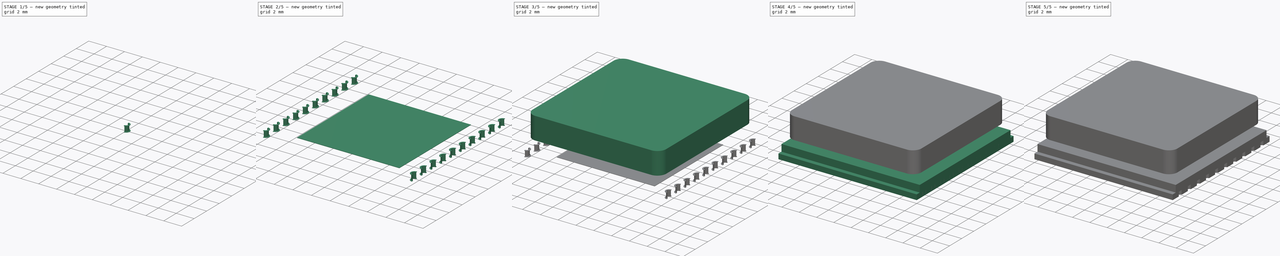
[diagram: build sequence overview — one tinted view per stage of 5, left to right]
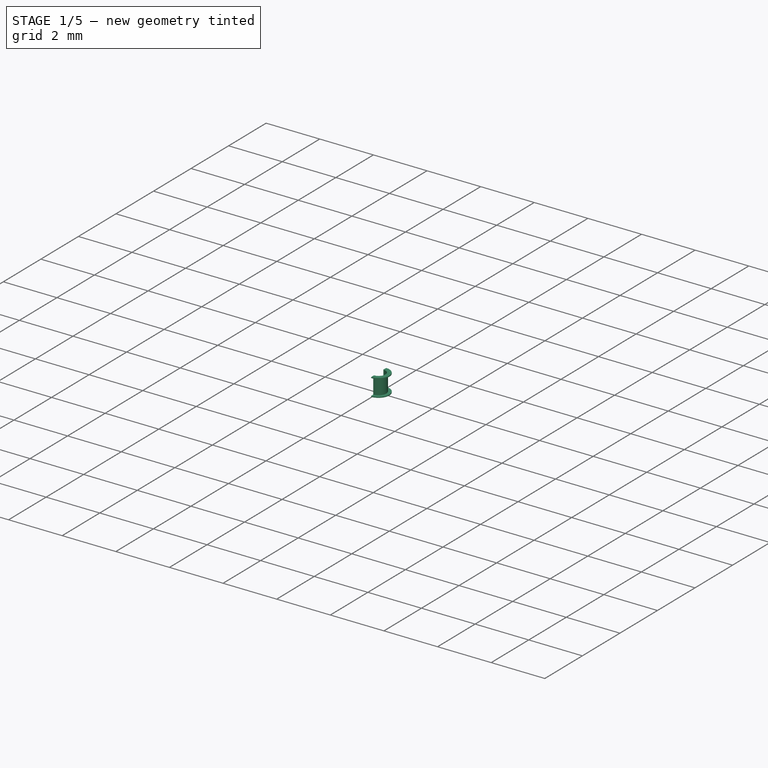
[diagram: stage 1 of 5 — iso view after this stage's code; geometry added in this stage tinted green]
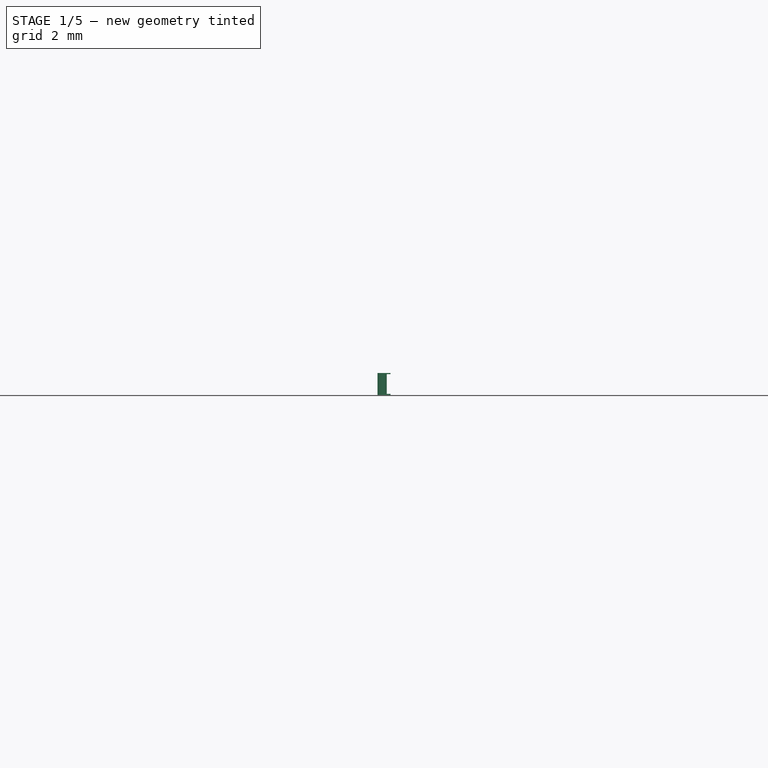
[diagram: stage 1 of 5 — front view after this stage's code; geometry added in this stage tinted green]
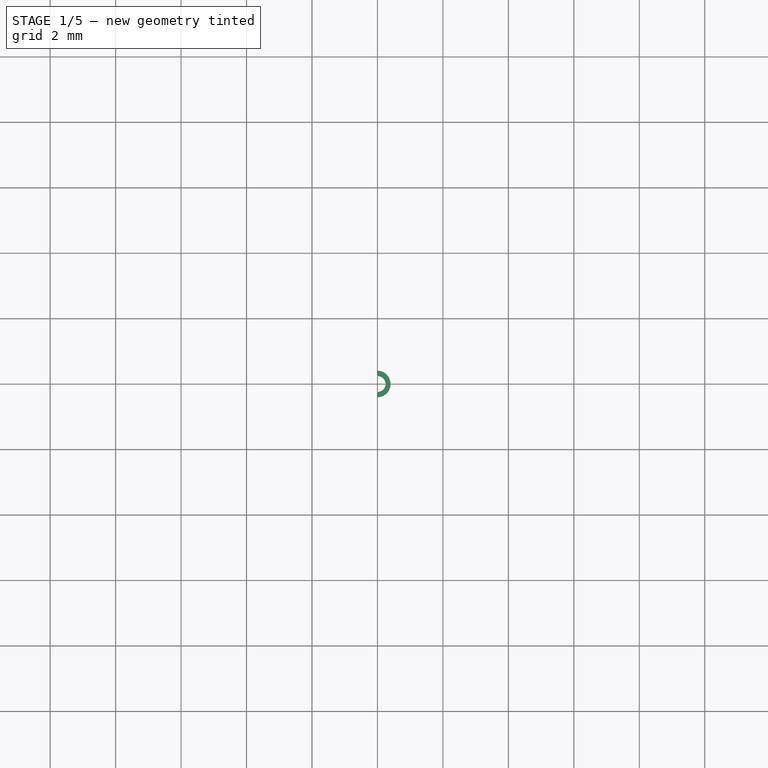
[diagram: stage 1 of 5 — top view after this stage's code; geometry added in this stage tinted green]
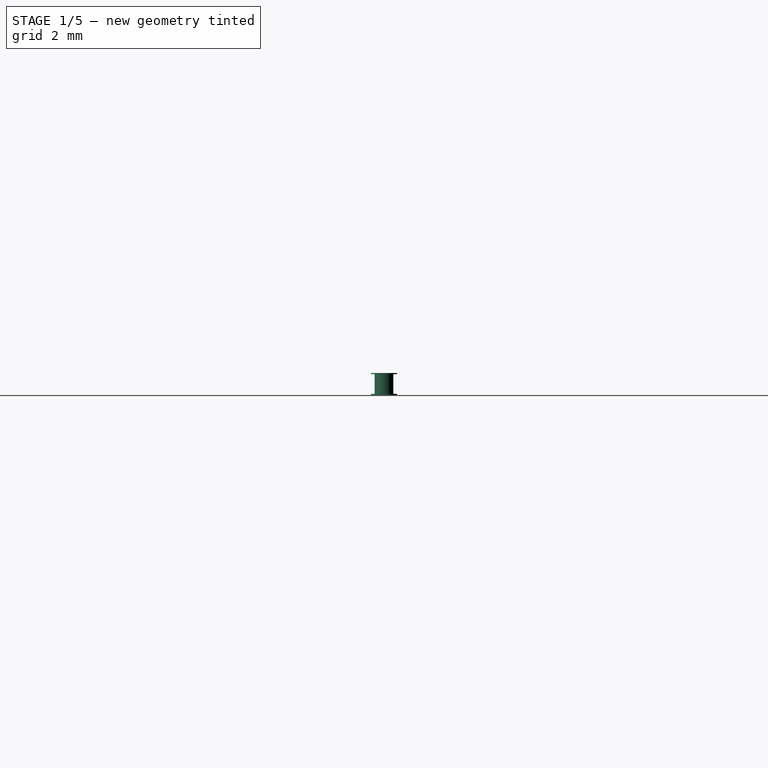
[diagram: stage 1 of 5 — right view after this stage's code; geometry added in this stage tinted green]
FCSTD DOCUMENT  (FreeCAD 1.0R38641 +468 (Git))
Label: fgpmmopa6h-1
License: All rights reserved
objects: Sketcher::SketchObject×11, PartDesign::Pad×8, PartDesign::Body×5, PartDesign::Pocket×3, Spreadsheet::Sheet×1, PartDesign::LinearPattern×1, PartDesign::Mirrored×1, PartDesign::MultiTransform×1, PartDesign::Thickness×1, PartDesign::Fillet×1, Part::FeaturePython×1, Part::Mirroring×1, Part::Compound×1
note: 75 computed .brp shape members not serialized (recipe doc carries the construction recipe); baked Part::Feature solids carry a one-line shape summary decoded from their .brp

FEATURE [PartDesign::Body] Body003  label="Patch"
  AllowCompound = false
  Group = -> [Sketch006,Pad003,Sketch007,Pad004,Fillet]
  Origin = -> Origin003
  Placement = pos=(0,0,4.7) rot=(0,0,1;0rad)
  Tip = -> Fillet
  expr: .Placement.Base.z = <<Master>>.height
FEATURE [Sketcher::SketchObject] Sketch008
  ArcFitTolerance = 1e-06
  AttachmentSupport = -> [XY_Plane004]
  FullyConstrained = true
  MakeInternals = false
  MapMode = 5
  expr: Constraints[10] = <<Master>>.pin_id
  sketch-geometry (4):
    g0: ArcOfCircle CenterX=0 CenterY=0 CenterZ=0 NormalX=0 NormalY=0 NormalZ=1 AngleXU=0 Radius=0.25 StartAngle=4.71239 EndAngle=7.85398
    g1: ArcOfCircle CenterX=0 CenterY=0 CenterZ=0 NormalX=0 NormalY=0 NormalZ=1 AngleXU=0 Radius=0.4 StartAngle=4.71239 EndAngle=7.85398
    g2: LineSegment StartX=1e-16 StartY=0.4 StartZ=0 EndX=1e-16 EndY=0.25 EndZ=0
    g3: LineSegment StartX=0 StartY=-0.25 StartZ=0 EndX=-1e-16 EndY=-0.4 EndZ=0
  constraints (12):
    c: Coincident(g0,g-1)
    c: PointOnObject(g0,g-2)
    c: PointOnObject(g0,g-2)
    c: Coincident(g1,g0)
    c: PointOnObject(g1,g-2)
    c: PointOnObject(g1,g-2)
    c: Coincident(g2,g1)
    c: Coincident(g2,g0)
    c: Coincident(g3,g0)
    c: Coincident(g3,g1)
    c: Diameter(g0) = 0.5
    c: Diameter(g1) = 0.8
FEATURE [PartDesign::Pad] Pad005
  Direction = (0,0,1)
  Length = 0.0348
  Length2 = 10
  Profile = -> Sketch008
  ReferenceAxis = -> Sketch008 [N_Axis]
  Suppressed = false
  Type = 0
  expr: Length = <<Master>>.trace_h
FEATURE [Sketcher::SketchObject] Sketch009
  ArcFitTolerance = 1e-06
  AttachmentSupport = -> [XY_Plane004]
  FullyConstrained = true
  MakeInternals = false
  MapMode = 5
  expr: Constraints[10] = <<Master>>.pin_id
  expr: Constraints[11] = <<Master>>.pin_od
  sketch-geometry (4):
    g0: ArcOfCircle CenterX=0 CenterY=0 CenterZ=0 NormalX=0 NormalY=0 NormalZ=1 AngleXU=0 Radius=0.25 StartAngle=4.71239 EndAngle=7.85398
    g1: ArcOfCircle CenterX=0 CenterY=0 CenterZ=0 NormalX=0 NormalY=0 NormalZ=1 AngleXU=0 Radius=0.2848 StartAngle=4.71239 EndAngle=7.85398
    g2: LineSegment StartX=1e-16 StartY=0.2848 StartZ=0 EndX=1e-16 EndY=0.25 EndZ=0
    g3: LineSegment StartX=0 StartY=-0.25 StartZ=0 EndX=-1e-16 EndY=-0.2848 EndZ=0
  constraints (12):
    c: Coincident(g0,g-1)
    c: PointOnObject(g0,g-2)
    c: PointOnObject(g0,g-2)
    c: Coincident(g1,g0)
    c: PointOnObject(g1,g-2)
    c: PointOnObject(g1,g-2)
    c: Coincident(g2,g1)
    c: Coincident(g2,g0)
    c: Coincident(g3,g0)
    c: Coincident(g3,g1)
    c: Diameter(g0) = 0.5
    c: Diameter(g1) = 0.5696
FEATURE [PartDesign::Pad] Pad006
  BaseFeature = -> Pad005
  Direction = (0,0,1)
  Length = 0.6348
  Length2 = 10
  Profile = -> Sketch009
  ReferenceAxis = -> Sketch009 [N_Axis]
  Suppressed = false
  Type = 0
  expr: Length = <<Master>>.pcb_top
FEATURE [Sketcher::SketchObject] Sketch010
  ArcFitTolerance = 1e-06
  AttachmentOffset = pos=(0,0,0.6348) rot=(0,0,1;0rad)
  AttachmentSupport = -> [XY_Plane004]
  FullyConstrained = true
  MakeInternals = false
  MapMode = 5
  Placement = pos=(0,0,0.6348) rot=(0,0,1;0rad)
  expr: .AttachmentOffset.Base.z = <<Master>>.pcb_top
  expr: Constraints[10] = <<Master>>.pin_id
  sketch-geometry (4):
    g0: ArcOfCircle CenterX=0 CenterY=0 CenterZ=0 NormalX=0 NormalY=0 NormalZ=1 AngleXU=0 Radius=0.25 StartAngle=4.71239 EndAngle=7.85398
    g1: ArcOfCircle CenterX=0 CenterY=0 CenterZ=0 NormalX=0 NormalY=0 NormalZ=1 AngleXU=0 Radius=0.4 StartAngle=4.71239 EndAngle=7.85398
    g2: LineSegment StartX=1e-16 StartY=0.4 StartZ=0 EndX=1e-16 EndY=0.25 EndZ=0
    g3: LineSegment StartX=0 StartY=-0.25 StartZ=0 EndX=-1e-16 EndY=-0.4 EndZ=0
  constraints (12):
    c: Coincident(g0,g-1)
    c: PointOnObject(g0,g-2)
    c: PointOnObject(g0,g-2)
    c: Coincident(g1,g0)
    c: PointOnObject(g1,g-2)
    c: PointOnObject(g1,g-2)
    c: Coincident(g2,g1)
    c: Coincident(g2,g0)
    c: Coincident(g3,g0)
    c: Coincident(g3,g1)
    c: Diameter(g0) = 0.5
    c: Diameter(g1) = 0.8
FEATURE [PartDesign::Pad] Pad007
  BaseFeature = -> Pad006
  Direction = (0,0,1)
  Length = 0.0348
  Length2 = 10
  Profile = -> Sketch010
  ReferenceAxis = -> Sketch010 [N_Axis]
  Refine = true
  Suppressed = false
  Type = 0
  expr: Length = <<Master>>.trace_h
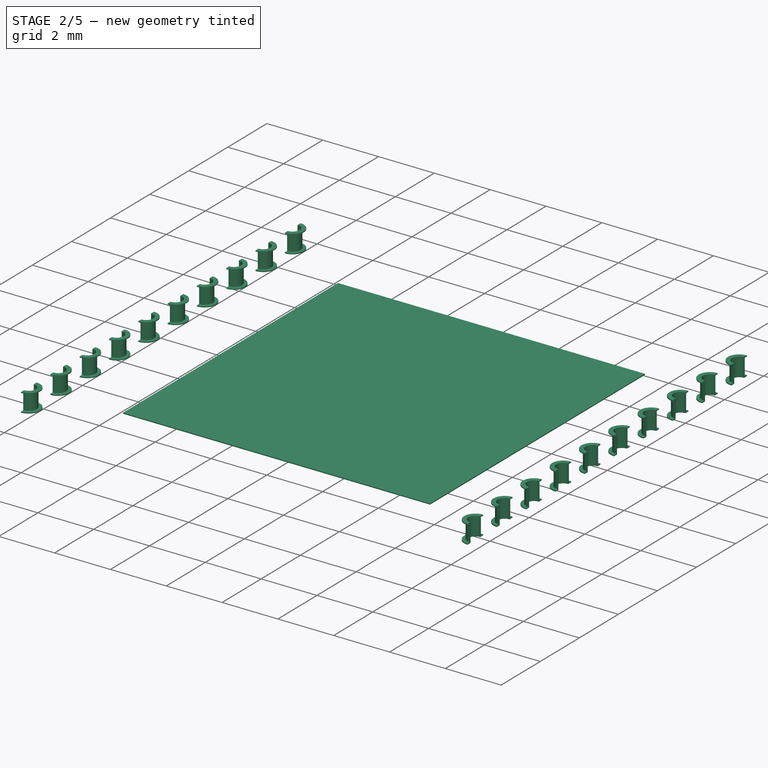
[diagram: stage 2 of 5 — iso view after this stage's code; geometry added in this stage tinted green]
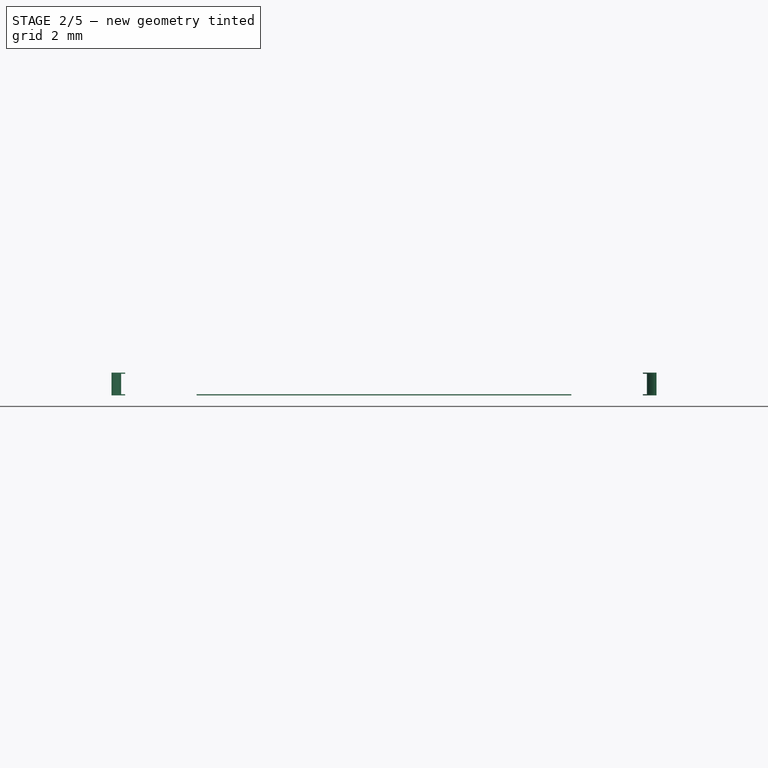
[diagram: stage 2 of 5 — front view after this stage's code; geometry added in this stage tinted green]
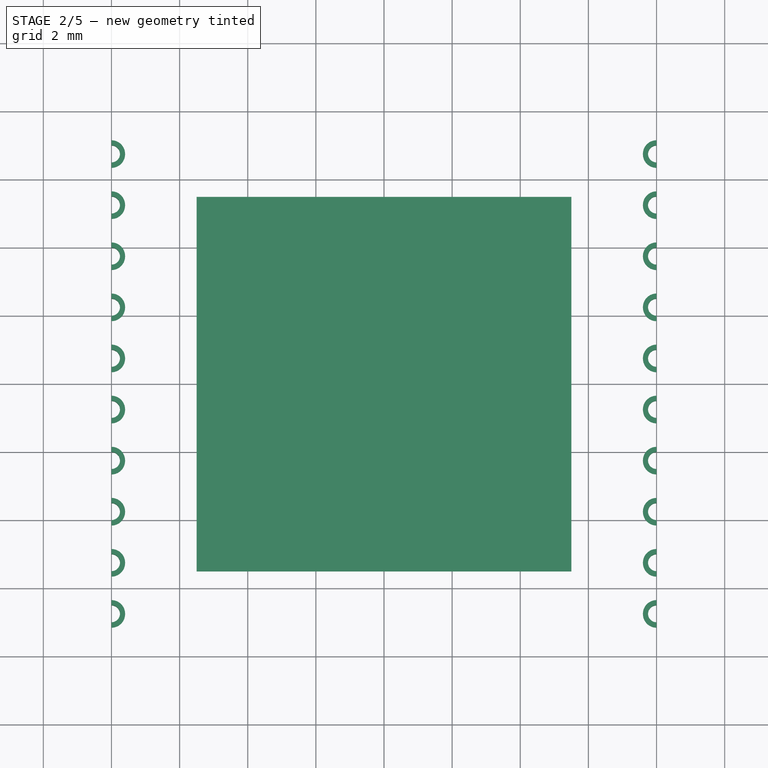
[diagram: stage 2 of 5 — top view after this stage's code; geometry added in this stage tinted green]
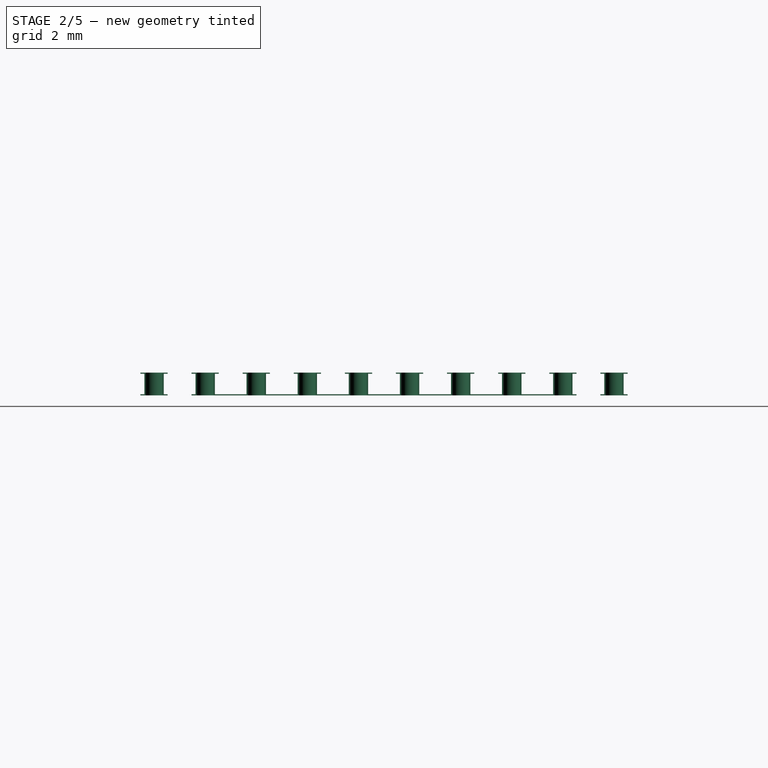
[diagram: stage 2 of 5 — right view after this stage's code; geometry added in this stage tinted green]
FEATURE [PartDesign::Body] Body002  label="Ant"
  AllowCompound = false
  Group = -> [Sketch005,Pad002]
  Origin = -> Origin002
  Tip = -> Pad002
FEATURE [Sketcher::SketchObject] Sketch006
  ArcFitTolerance = 1e-06
  AttachmentSupport = -> [XY_Plane003]
  FullyConstrained = true
  MakeInternals = false
  MapMode = 5
  sketch-geometry (4):
    g0: LineSegment StartX=-5.5 StartY=5.5 StartZ=0 EndX=-5.5 EndY=-5.5 EndZ=0
    g1: LineSegment StartX=-5.5 StartY=-5.5 StartZ=0 EndX=5.5 EndY=-5.5 EndZ=0
    g2: LineSegment StartX=5.5 StartY=-5.5 StartZ=0 EndX=5.5 EndY=5.5 EndZ=0
    g3: LineSegment StartX=5.5 StartY=5.5 StartZ=0 EndX=-5.5 EndY=5.5 EndZ=0
  constraints (11):
    c: Coincident(g0,g1)
    c: Coincident(g1,g2)
    c: Coincident(g2,g3)
    c: Coincident(g3,g0)
    c: Vertical(g0)
    c: Vertical(g2)
    c: Horizontal(g1)
    c: Horizontal(g3)
    c: Equal(g1,g2)
    c: Symmetric(g0,g2,g-1)
    c: DistanceX(g1,g1) = 11
FEATURE [PartDesign::Pad] Pad003
  Direction = (0,0,1)
  Length = 0.0348
  Length2 = 10
  Profile = -> Sketch006
  ReferenceAxis = -> Sketch006 [N_Axis]
  Suppressed = false
  Type = 0
  expr: Length = <<Master>>.trace_h
FEATURE [PartDesign::Body] Body004
  AllowCompound = false
  Group = -> [Sketch008,Pad005,Sketch009,Pad006,Sketch010,Pad007]
  Origin = -> Origin004
  Tip = -> Pad007
FEATURE [Part::FeaturePython] Array  # Draft array (typed FeaturePython)
  Angle = 360
  ArrayType = 0
  Axis = (0,0,1)
  Base = -> Body004
  Center = (0,0,0)
  Count = 10
  Fuse = false
  IntervalAxis = (0,0,0)
  IntervalX = (100,0,0)
  IntervalY = (0,-1.5,0)
  IntervalZ = (0,0,100)
  NumberCircles = 3
  NumberPolar = 5
  NumberX = 1
  NumberY = 10
  NumberZ = 1
  Placement = pos=(-8,6.75,0) rot=(0,0,1;0rad)
  RadialDistance = 50
  Symmetry = 1
  TangentialDistance = 25
  expr: .Placement.Base.x = -<<Master>>.pcb_sq / 2
  expr: .Placement.Base.y = <<Master>>.pcb_sq / 2 - 1.25 mm
FEATURE [Part::Mirroring] Part__Mirroring  label="Array (Mirror #1)"
  Base = (0,0,0)
  Normal = (1,0,0)
  Source = -> Array
FEATURE [Part::Compound] Compound  label="Pins"
  Links = -> [Part__Mirroring,Array]
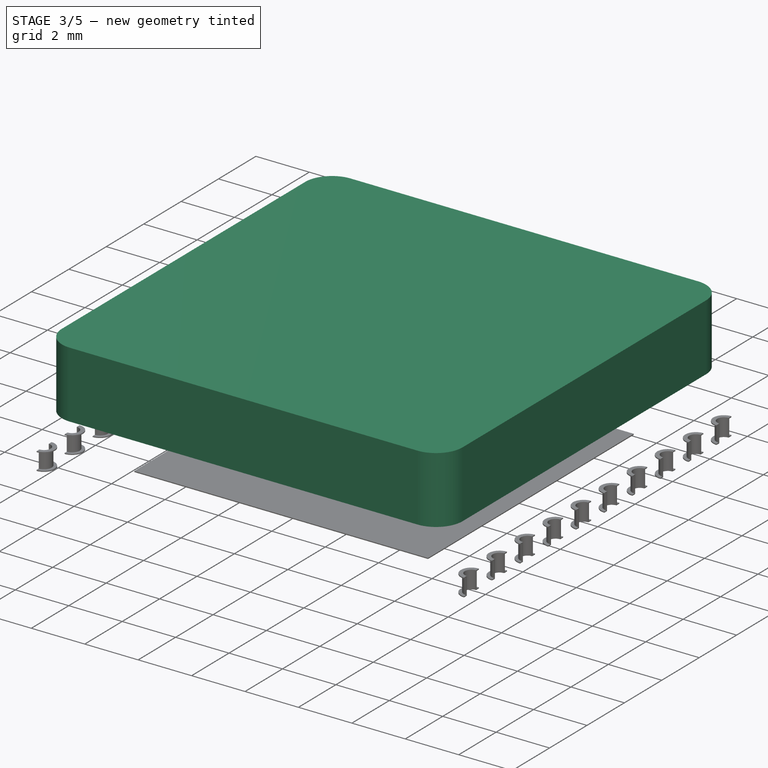
[diagram: stage 3 of 5 — iso view after this stage's code; geometry added in this stage tinted green]
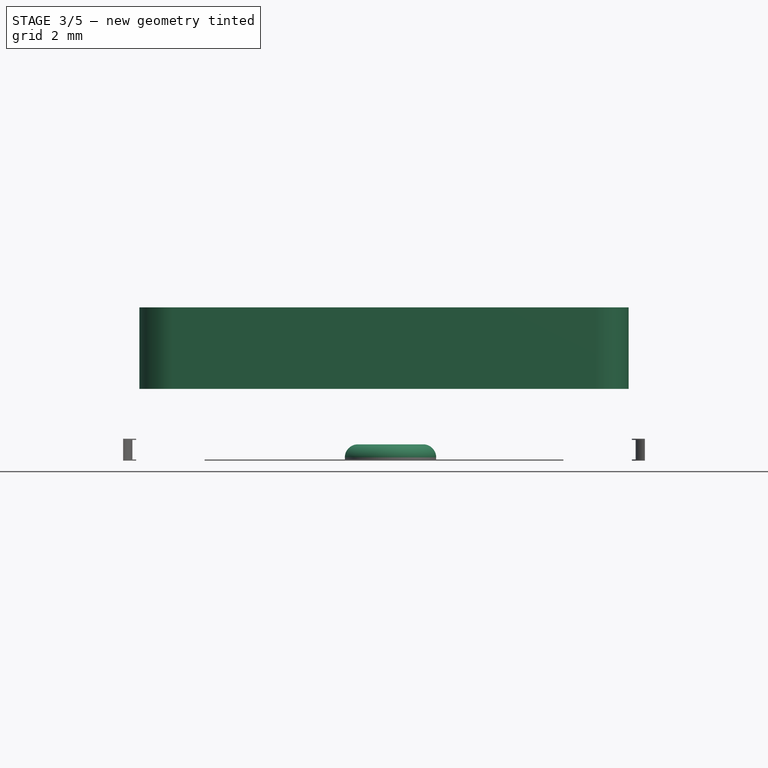
[diagram: stage 3 of 5 — front view after this stage's code; geometry added in this stage tinted green]
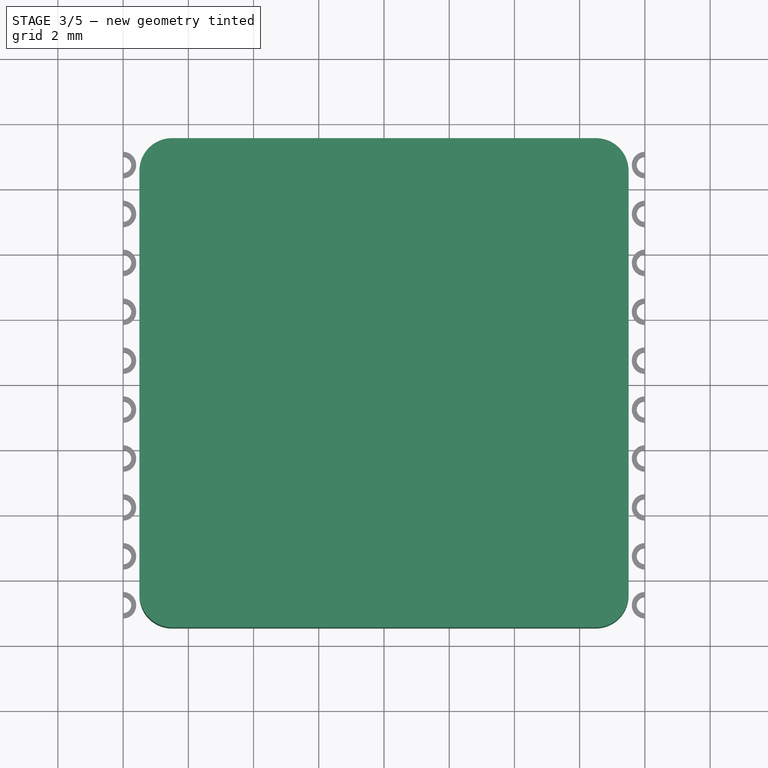
[diagram: stage 3 of 5 — top view after this stage's code; geometry added in this stage tinted green]
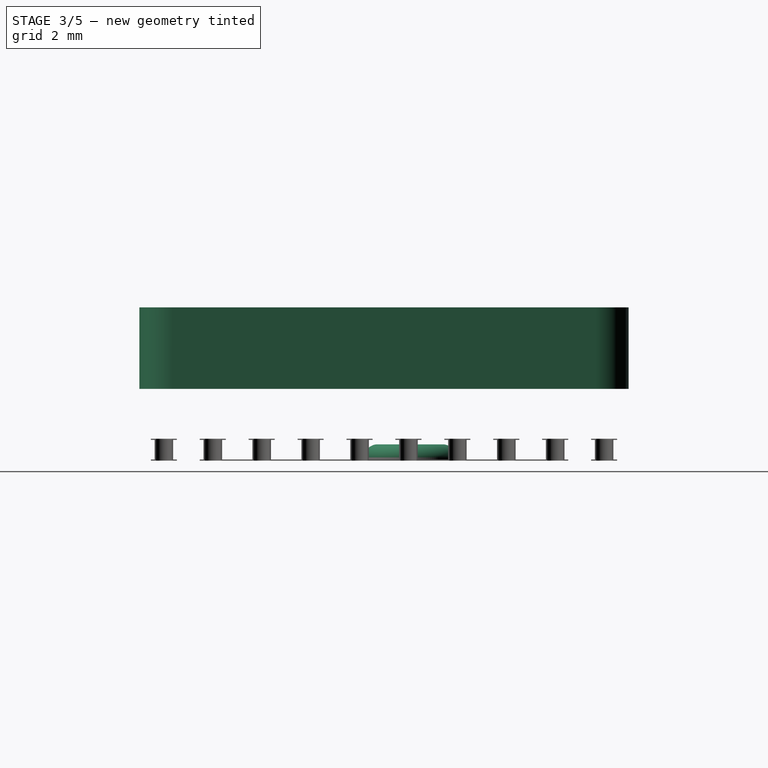
[diagram: stage 3 of 5 — right view after this stage's code; geometry added in this stage tinted green]
FEATURE [PartDesign::Body] Body001  label="Shield"
  AllowCompound = false
  Group = -> [Sketch003,Pad001,Thickness,Sketch004,Pocket002]
  Origin = -> Origin001
  Placement = pos=(0,0,0.6348) rot=(0,0,1;0rad)
  Tip = -> Pocket002
  expr: .Placement.Base.z = <<Master>>.pcb_top
FEATURE [Sketcher::SketchObject] Sketch005
  ArcFitTolerance = 1e-06
  AttachmentOffset = pos=(0,0,2.2) rot=(0,0,1;0rad)
  AttachmentSupport = -> [XY_Plane002]
  FullyConstrained = true
  MakeInternals = false
  MapMode = 5
  Placement = pos=(0,0,2.2) rot=(0,0,1;0rad)
  expr: .AttachmentOffset.Base.z = <<Master>>.height - <<Master>>.ant_h
  expr: Constraints[21] = <<Master>>.ant_sq
  sketch-geometry (10):
    g0: LineSegment StartX=-7.5 StartY=6.5 StartZ=0 EndX=-7.5 EndY=-6.5 EndZ=0
    g1: LineSegment StartX=-6.5 StartY=-7.5 StartZ=0 EndX=6.5 EndY=-7.5 EndZ=0
    g2: LineSegment StartX=7.5 StartY=-6.5 StartZ=0 EndX=7.5 EndY=6.5 EndZ=0
    g3: LineSegment StartX=6.5 StartY=7.5 StartZ=0 EndX=-6.5 EndY=7.5 EndZ=0
    g4: ArcOfCircle CenterX=-6.5 CenterY=6.5 CenterZ=0 NormalX=0 NormalY=0 NormalZ=1 AngleXU=0 Radius=1 StartAngle=1.5708 EndAngle=3.14159
    g5: ArcOfCircle CenterX=-6.5 CenterY=-6.5 CenterZ=0 NormalX=0 NormalY=0 NormalZ=1 AngleXU=0 Radius=1 StartAngle=3.14159 EndAngle=4.71239
    g6: ArcOfCircle CenterX=6.5 CenterY=-6.5 CenterZ=0 NormalX=0 NormalY=0 NormalZ=1 AngleXU=0 Radius=1 StartAngle=4.71239 EndAngle=6.28319
    g7: ArcOfCircle CenterX=6.5 CenterY=6.5 CenterZ=0 NormalX=0 NormalY=0 NormalZ=1 AngleXU=0 Radius=1 StartAngle=4e-16 EndAngle=1.5708
    g8: GeomPoint [constr] X=-7.5 Y=7.5 Z=0
    g9: GeomPoint [constr] X=7.5 Y=-7.5 Z=0
  constraints (23):
    c: Tangent(g0,g4) = -1.5708
    c: Tangent(g0,g5) = -1.5708
    c: Tangent(g1,g5) = -1.5708
    c: Tangent(g1,g6) = -1.5708
    c: Tangent(g2,g6) = -1.5708
    c: Tangent(g2,g7) = -1.5708
    c: Tangent(g3,g7) = -1.5708
    c: Tangent(g3,g4) = -1.5708
    c: Vertical(g0)
    c: Vertical(g2)
    c: Horizontal(g1)
    c: Horizontal(g3)
    c: Equal(g4,g5)
    c: Equal(g5,g6)
    c: Equal(g6,g7)
    c: PointOnObject(g8,g0)
    c: PointOnObject(g8,g3)
    c: PointOnObject(g9,g1)
    c: PointOnObject(g9,g2)
    c: Symmetric(g8,g9,g-1)
    c: Equal(g1,g2)
    c: DistanceX(g0,g2) = 15
    c: Radius(g7) = 1
FEATURE [PartDesign::Pad] Pad002
  Direction = (0,0,1)
  Length = 2.5
  Length2 = 10
  Profile = -> Sketch005
  ReferenceAxis = -> Sketch005 [N_Axis]
  Suppressed = false
  Type = 0
  expr: Length = <<Master>>.ant_h
FEATURE [Sketcher::SketchObject] Sketch007
  ArcFitTolerance = 1e-06
  AttachmentSupport = -> [XY_Plane003]
  FullyConstrained = true
  MakeInternals = false
  MapMode = 5
  sketch-geometry (1):
    g0: Circle CenterX=0.2 CenterY=0.8 CenterZ=0 NormalX=0 NormalY=0 NormalZ=1 AngleXU=0 Radius=1.4
  constraints (3):
    c: Radius(g0) = 1.4
    c: DistanceX(g-1,g0) = 0.2
    c: DistanceY(g-1,g0) = 0.8
FEATURE [PartDesign::Pad] Pad004
  BaseFeature = -> Pad003
  Direction = (0,0,1)
  Length = 0.5
  Length2 = 10
  Profile = -> Sketch007
  ReferenceAxis = -> Sketch007 [N_Axis]
  Suppressed = false
  Type = 0
FEATURE [PartDesign::Fillet] Fillet
  Base = -> Pad004 [Edge16]
  BaseFeature = -> Pad004
  Radius = 0.4
  SupportTransform = false
  Suppressed = false
  UseAllEdges = false
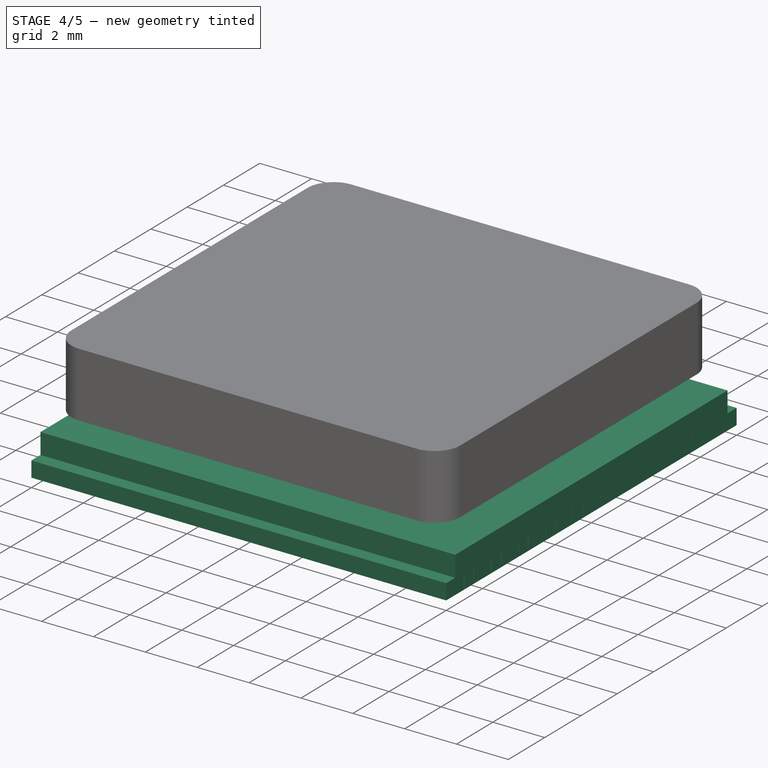
[diagram: stage 4 of 5 — iso view after this stage's code; geometry added in this stage tinted green]
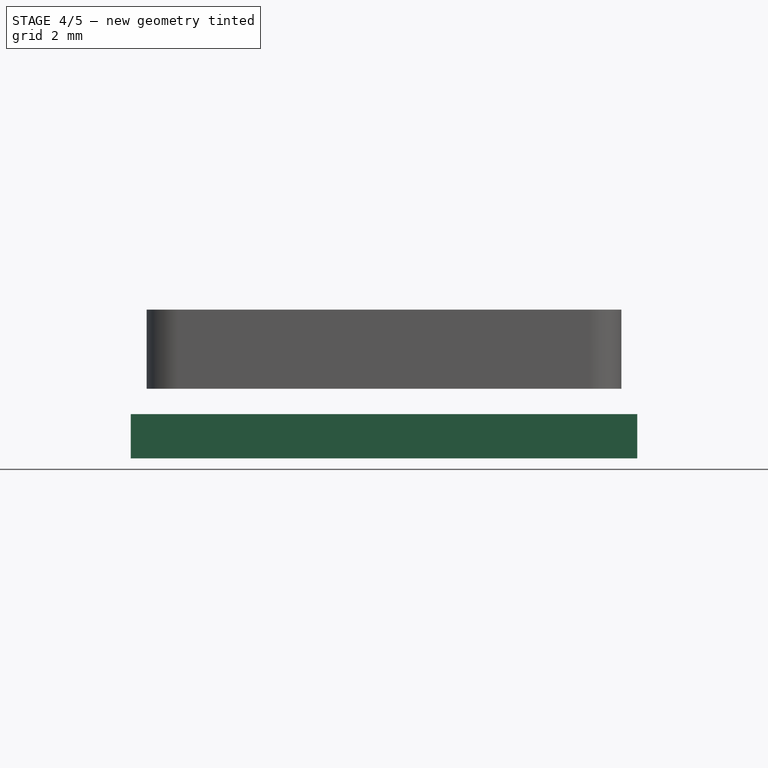
[diagram: stage 4 of 5 — front view after this stage's code; geometry added in this stage tinted green]
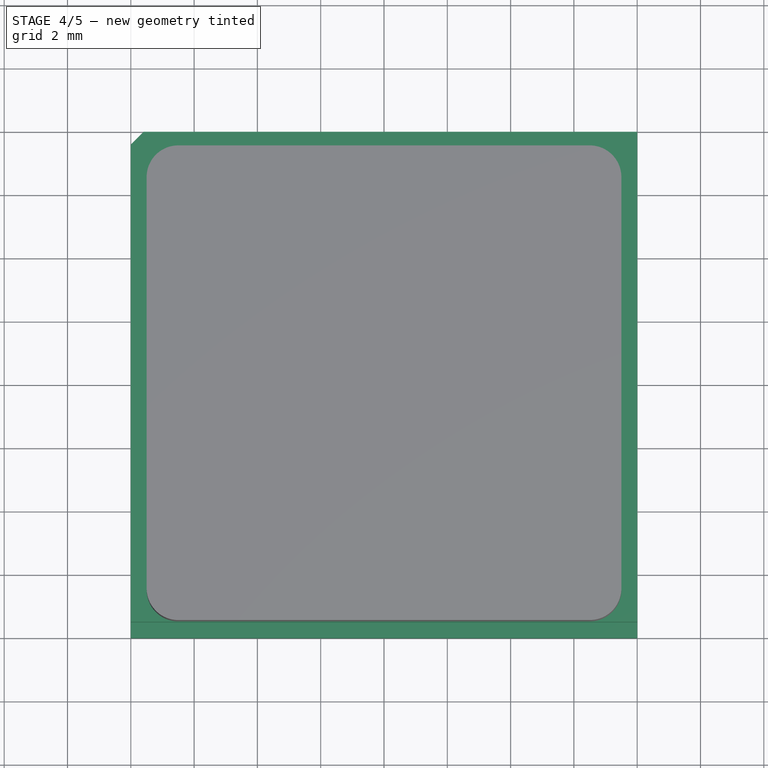
[diagram: stage 4 of 5 — top view after this stage's code; geometry added in this stage tinted green]
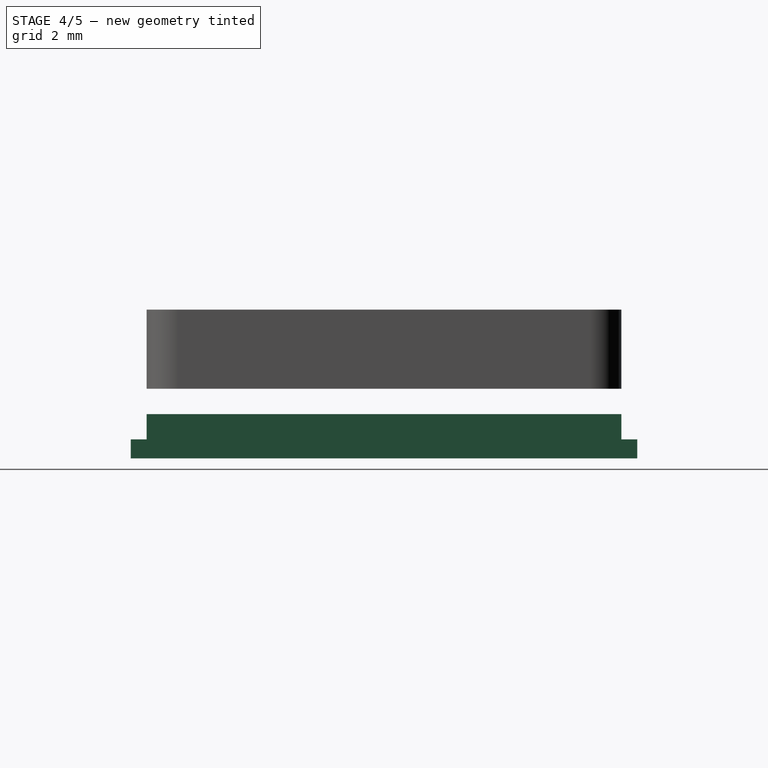
[diagram: stage 4 of 5 — right view after this stage's code; geometry added in this stage tinted green]
FEATURE [Spreadsheet::Sheet] Spreadsheet  label="Master"
  cells = A1='Constants; A2='height; B2(height)==4.7 mm; C2='Height of housing; A3='height sb; B3(height_sb)==5.2 mm; C3='Height of housing + antenna solder bump; A4='pcb h; B4(pcb_h)==0.6 mm; C4='pcb thickness; A5='pcb square; B5(pcb_sq)==16 mm; C5='pcb square size; A6='trace h; B6(trace_h)==34.8 um; C6='trace thickness; A7='pin id; B7(pin_id)==0.5 mm; C7='Castellation hole diameter; A8='shield height; B8(shield_h)==1.4 mm; C8='Shield height; A9='ant square; B9(ant_sq)==15 mm; C9='Antenna square size; A10='ant h; B10(ant_h)==2.5 mm; C10='Antenna height; A12='Calculated; A13='pcb top; B13(pcb_top)==pcb_h + trace_h; C13='Top of pcb; A14='pin od; B14(pin_od)==pin_id + 2 * trace_h; C14='Castellation hole drill diameter
FEATURE [Sketcher::SketchObject] Sketch
  ArcFitTolerance = 1e-06
  AttachmentSupport = -> [XY_Plane]
  FullyConstrained = true
  MakeInternals = false
  MapMode = 5
  expr: Constraints[9] = <<Master>>.pcb_sq
  sketch-geometry (7):
    g0: LineSegment StartX=-8 StartY=-8 StartZ=0 EndX=8 EndY=-8 EndZ=0
    g1: LineSegment StartX=8 StartY=-8 StartZ=0 EndX=8 EndY=8 EndZ=0
    g2: LineSegment StartX=8 StartY=8 StartZ=0 EndX=-7.6 EndY=8 EndZ=0
    g3: LineSegment StartX=-8 StartY=7.6 StartZ=0 EndX=-8 EndY=-8 EndZ=0
    g4: LineSegment StartX=-7.6 StartY=8 StartZ=0 EndX=-8 EndY=7.6 EndZ=0
    g5: LineSegment [constr] StartX=-8 StartY=7.6 StartZ=0 EndX=-8 EndY=8 EndZ=0
    g6: LineSegment [constr] StartX=-7.6 StartY=8 StartZ=0 EndX=-8 EndY=8 EndZ=0
  constraints (19):
    c: Coincident(g0,g1)
    c: Coincident(g1,g2)
    c: Coincident(g3,g0)
    c: Horizontal(g0)
    c: Horizontal(g2)
    c: Vertical(g1)
    c: Vertical(g3)
    c: Symmetric(g0,g1,g-1)
    c: Equal(g0,g1)
    c: DistanceX(g0,g0) = 16
    c: Coincident(g2,g4)
    c: Coincident(g3,g4)
    c: Coincident(g5,g3)
    c: Vertical(g5)
    c: Coincident(g6,g2)
    c: Coincident(g6,g5)
    c: Horizontal(g6)
    c: Equal(g6,g5)
    c: Distance(g6,g6) = 0.4
FEATURE [PartDesign::Pad] Pad
  Direction = (0,0,1)
  Length = 0.6
  Length2 = 10
  Profile = -> Sketch
  ReferenceAxis = -> Sketch [N_Axis]
  Suppressed = false
  Type = 0
  expr: Length = <<Master>>.pcb_h
FEATURE [PartDesign::Body] Body  label="PCB"
  AllowCompound = false
  Group = -> [Sketch,Pad,Sketch001,Pocket,Sketch002,Pocket001,MultiTransform,LinearPattern,Mirrored]
  Origin = -> Origin
  Placement = pos=(0,0,0.0348) rot=(0,0,1;0rad)
  Tip = -> MultiTransform
  expr: .Placement.Base.z = <<Master>>.trace_h
FEATURE [Sketcher::SketchObject] Sketch003
  ArcFitTolerance = 1e-06
  AttachmentSupport = -> [XY_Plane001]
  FullyConstrained = true
  MakeInternals = false
  MapMode = 5
  expr: Constraints[10] = <<Master>>.ant_sq
  expr: Constraints[9] = <<Master>>.pcb_sq
  sketch-geometry (4):
    g0: LineSegment StartX=-8 StartY=7.5 StartZ=0 EndX=-8 EndY=-7.5 EndZ=0
    g1: LineSegment StartX=-8 StartY=-7.5 StartZ=0 EndX=8 EndY=-7.5 EndZ=0
    g2: LineSegment StartX=8 StartY=-7.5 StartZ=0 EndX=8 EndY=7.5 EndZ=0
    g3: LineSegment StartX=8 StartY=7.5 StartZ=0 EndX=-8 EndY=7.5 EndZ=0
  constraints (11):
    c: Coincident(g0,g1)
    c: Coincident(g1,g2)
    c: Coincident(g2,g3)
    c: Coincident(g3,g0)
    c: Vertical(g0)
    c: Vertical(g2)
    c: Horizontal(g1)
    c: Horizontal(g3)
    c: Symmetric(g2,g0,g-1)
    c: DistanceX(g1,g1) = 16
    c: DistanceY(g2,g2) = 15
FEATURE [PartDesign::Pad] Pad001
  Direction = (0,0,1)
  Length = 1.4
  Length2 = 10
  Profile = -> Sketch003
  ReferenceAxis = -> Sketch003 [N_Axis]
  Suppressed = false
  Type = 0
  expr: Length = <<Master>>.shield_h
FEATURE [PartDesign::Thickness] Thickness
  Base = -> Pad001 [Face5]
  BaseFeature = -> Pad001
  Intersection = false
  Join = 0
  Mode = 0
  Reversed = true
  SupportTransform = false
  Suppressed = false
  Value = 0.2
FEATURE [Sketcher::SketchObject] Sketch004
  ArcFitTolerance = 1e-06
  AttachmentSupport = -> [YZ_Plane001]
  FullyConstrained = true
  MakeInternals = false
  MapMode = 5
  Placement = pos=(0,0,0) rot=(0.57735,0.57735,0.57735;2.0944rad)
  expr: Constraints[10] = <<Master>>.ant_sq - 0.4 mm
  sketch-geometry (4):
    g0: LineSegment StartX=-7.3 StartY=0.5 StartZ=0 EndX=-7.3 EndY=0 EndZ=0
    g1: LineSegment StartX=-7.3 StartY=0 StartZ=0 EndX=7.3 EndY=0 EndZ=0
    g2: LineSegment StartX=7.3 StartY=0 StartZ=0 EndX=7.3 EndY=0.5 EndZ=0
    g3: LineSegment StartX=7.3 StartY=0.5 StartZ=0 EndX=-7.3 EndY=0.5 EndZ=0
  constraints (11):
    c: Coincident(g0,g1)
    c: Coincident(g1,g2)
    c: Coincident(g2,g3)
    c: Coincident(g3,g0)
    c: Vertical(g0)
    c: Vertical(g2)
    c: Horizontal(g3)
    c: Symmetric(g0,g1,g-2)
    c: PointOnObject(g-1,g1)
    c: Distance(g0,g0) = 0.5
    c: DistanceX(g3,g3) = 14.6
FEATURE [PartDesign::Pocket] Pocket002
  BaseFeature = -> Thickness
  Direction = (-1,0,0)
  Length = 5
  Length2 = 5
  Midplane = true
  Profile = -> Sketch004
  ReferenceAxis = -> Sketch004 [N_Axis]
  Suppressed = false
  Type = 1
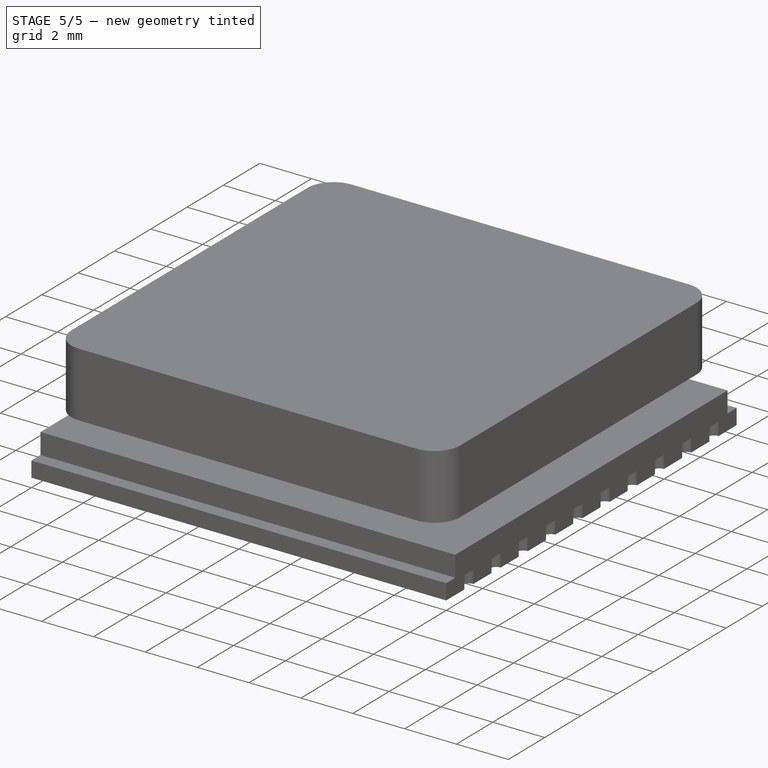
[diagram: stage 5 of 5 — iso view after this stage's code; geometry added in this stage tinted green]
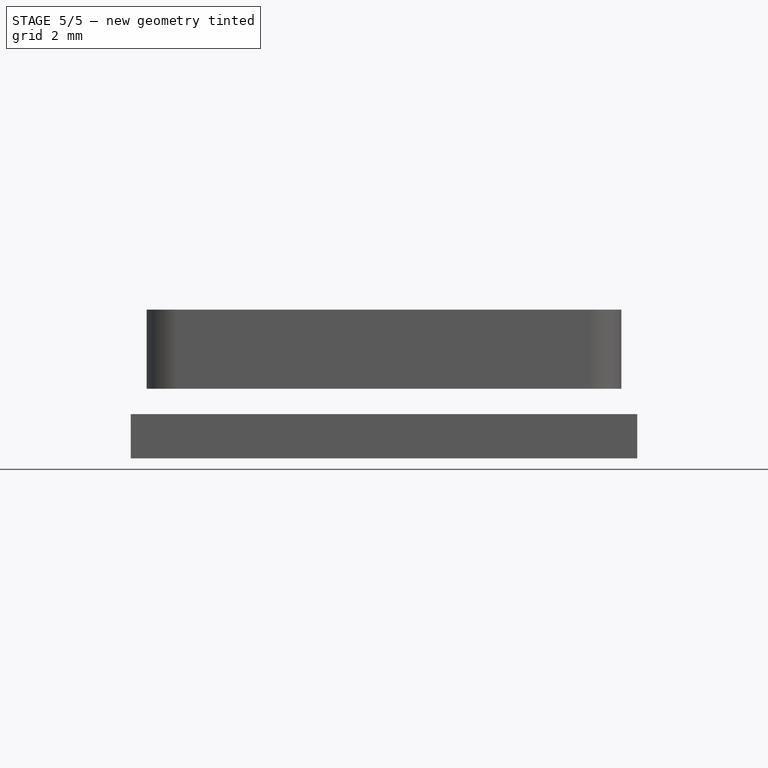
[diagram: stage 5 of 5 — front view after this stage's code; geometry added in this stage tinted green]
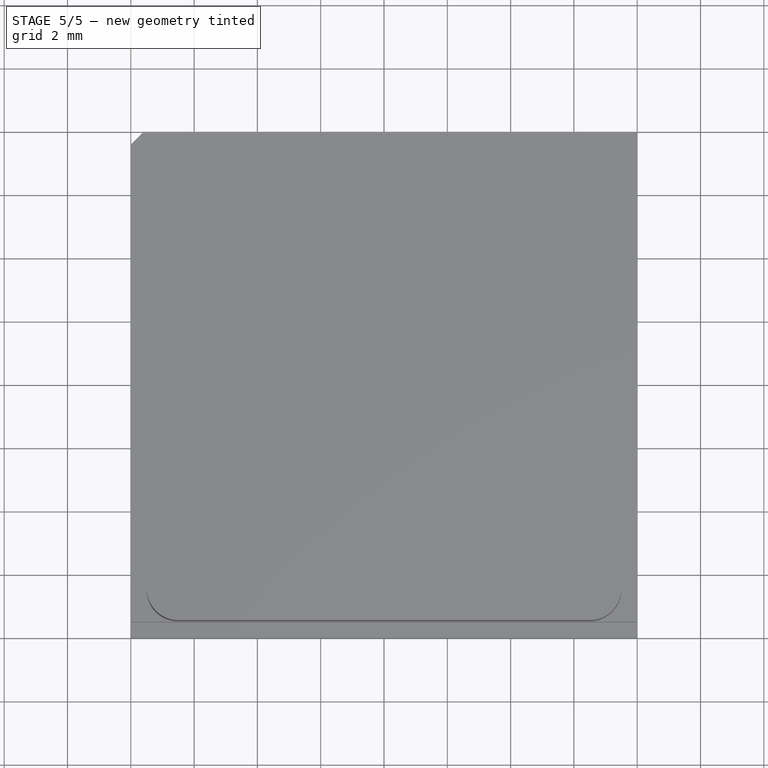
[diagram: stage 5 of 5 — top view after this stage's code; geometry added in this stage tinted green]
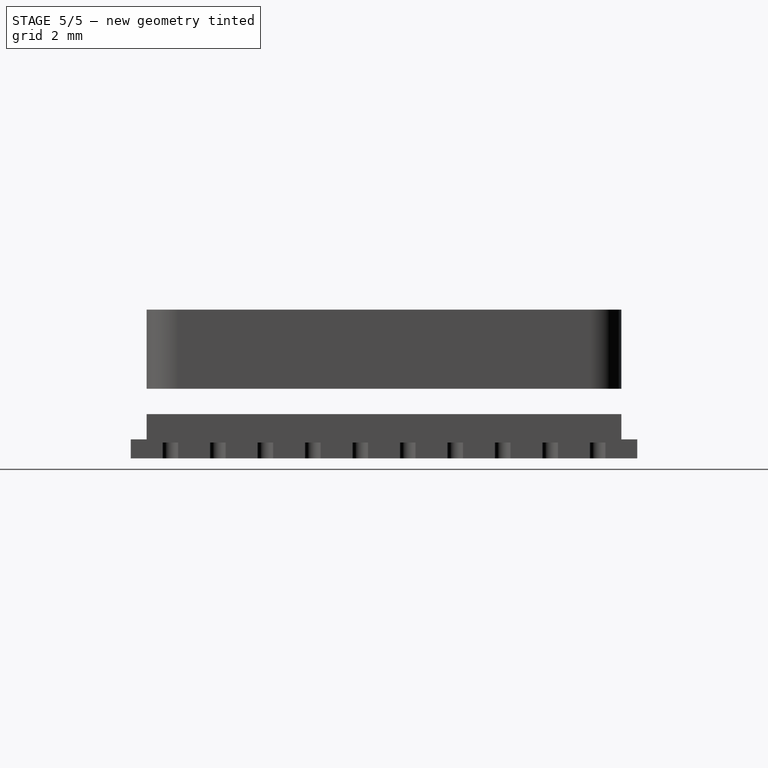
[diagram: stage 5 of 5 — right view after this stage's code; geometry added in this stage tinted green]
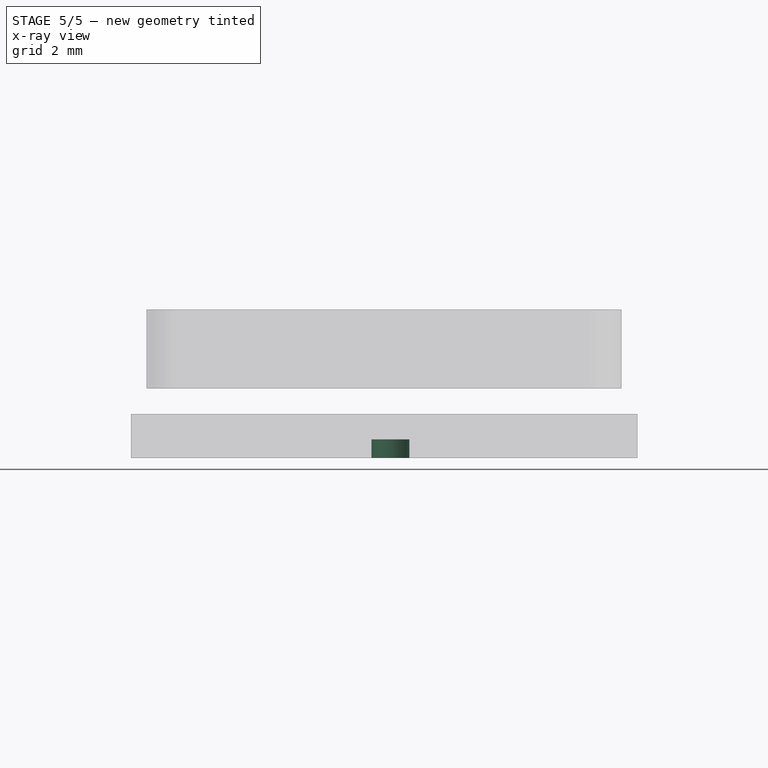
[diagram: stage 5 of 5 — x-ray composite at the front view; earlier geometry ghosted, this stage's added geometry solid]
FEATURE [Sketcher::SketchObject] Sketch001
  ArcFitTolerance = 1e-06
  AttachmentSupport = -> [XY_Plane]
  FullyConstrained = true
  MakeInternals = false
  MapMode = 5
  sketch-geometry (1):
    g0: Circle CenterX=0.2 CenterY=0.8 CenterZ=0 NormalX=0 NormalY=0 NormalZ=1 AngleXU=0 Radius=0.6
  constraints (3):
    c: DistanceX(g-1,g0) = 0.2
    c: DistanceY(g-1,g0) = 0.8
    c: Diameter(g0) = 1.2
FEATURE [PartDesign::Pocket] Pocket
  BaseFeature = -> Pad
  Direction = (0,0,-1)
  Length = 5
  Length2 = 5
  Profile = -> Sketch001
  ReferenceAxis = -> Sketch001 [N_Axis]
  Reversed = true
  Suppressed = false
  Type = 1
FEATURE [Sketcher::SketchObject] Sketch002
  ArcFitTolerance = 1e-06
  AttachmentSupport = -> [XY_Plane]
  FullyConstrained = true
  MakeInternals = false
  MapMode = 5
  expr: Constraints[0] = <<Master>>.pcb_sq / 2
  expr: Constraints[1] = <<Master>>.pin_od
  expr: Constraints[2] = <<Master>>.pcb_sq / 2 - 1.25 mm
  sketch-geometry (1):
    g0: Circle CenterX=-8 CenterY=6.75 CenterZ=0 NormalX=0 NormalY=0 NormalZ=1 AngleXU=0 Radius=0.2848
  constraints (3):
    c: DistanceX(g0,g-1) = 8
    c: Diameter(g0) = 0.5696
    c: DistanceY(g-1,g0) = 6.75
FEATURE [PartDesign::Pocket] Pocket001
  BaseFeature = -> Pocket
  Direction = (0,0,-1)
  Length = 5
  Length2 = 5
  Profile = -> Sketch002
  ReferenceAxis = -> Sketch002 [N_Axis]
  Reversed = true
  Suppressed = false
  Type = 1
FEATURE [PartDesign::LinearPattern] LinearPattern
  Direction = -> Sketch002 [V_Axis]
  Length = 13.5
  Mode = 0
  Occurrences = 10
  Offset = 1.5
  Reversed = true
  Suppressed = false
  TransformMode = 0
FEATURE [PartDesign::Mirrored] Mirrored
  MirrorPlane = -> Sketch002 [V_Axis]
  Suppressed = false
  TransformMode = 0
FEATURE [PartDesign::MultiTransform] MultiTransform
  BaseFeature = -> Pocket001
  Originals = -> [Pocket001]
  Suppressed = false
  TransformMode = 0
  Transformations = -> [LinearPattern,Mirrored]
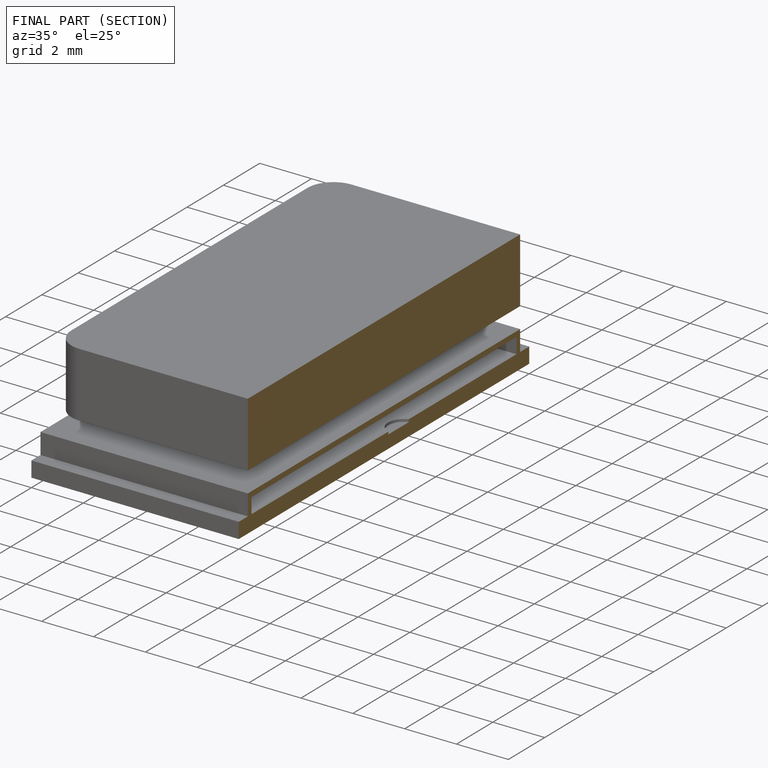
[diagram: finished part — half-section view (interior)]
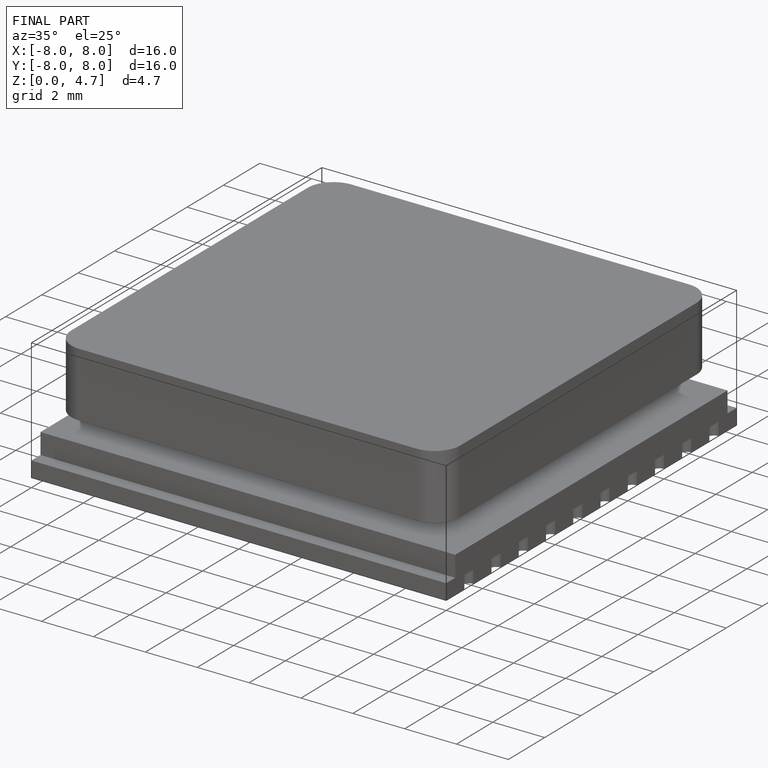
[diagram: finished part — iso view with bounding-box wireframe]
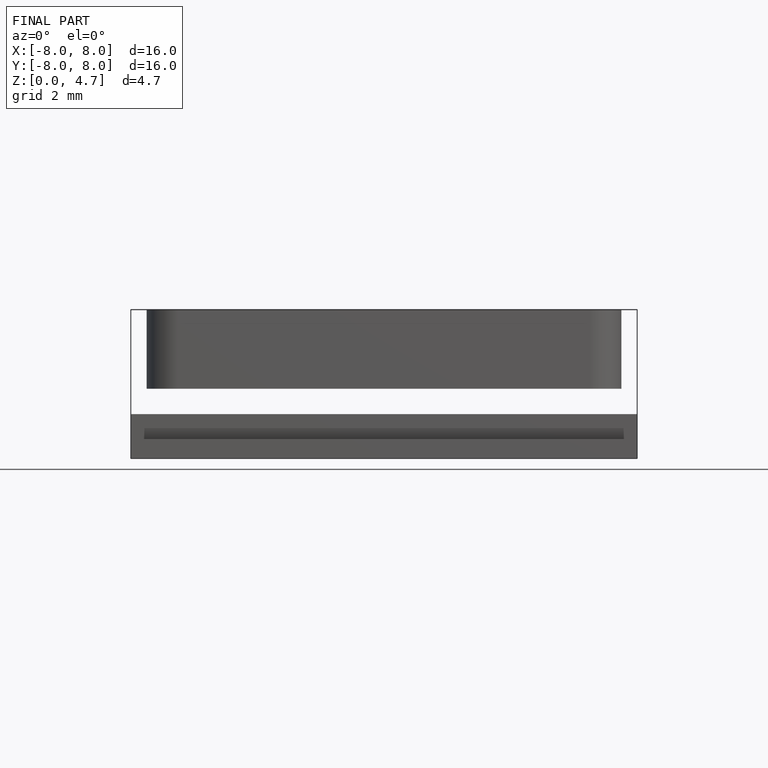
[diagram: finished part — front view with bounding-box wireframe]
